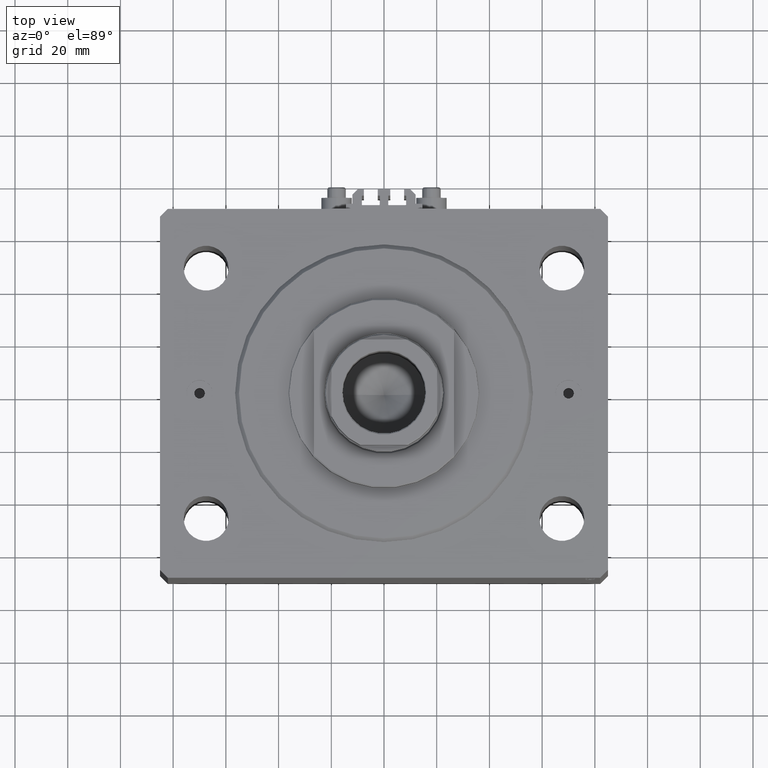
[diagram: clean part render]
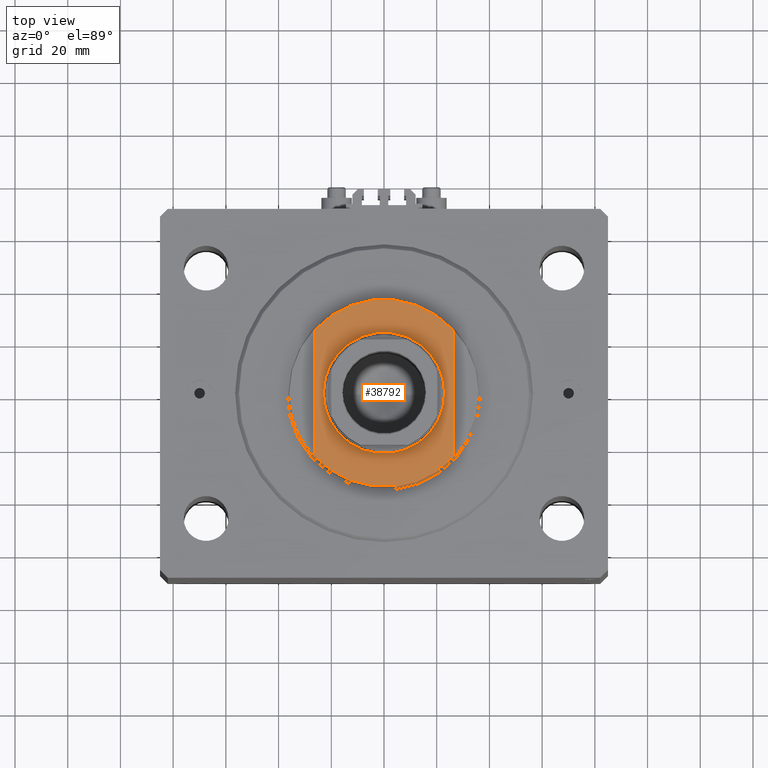
[diagram: same view with one face highlighted and labeled with its STEP entity id]
A machine part, top view. The second image highlights one B-rep face of the part: STEP entity #38792.
In plain terms, the highlighted planar face has unit normal (0, 0, 1).
Its self-contained STEP definition (entity closure, byte-faithful):
#463 = DIRECTION ( 'NONE',  ( -1.000000000000000000, 0.000000000000000000, 0.000000000000000000 ) ) ;
#1990 = DIRECTION ( 'NONE',  ( -1.000000000000000000, 0.000000000000000000, 0.000000000000000000 ) ) ;
#2572 = VERTEX_POINT ( 'NONE', #11446 ) ;
#3893 = VECTOR ( 'NONE', #31087, 1000.000000000000000 ) ;
#5106 = EDGE_CURVE ( 'NONE', #2572, #6985, #33433, .T. ) ;
#5212 = AXIS2_PLACEMENT_3D ( 'NONE', #28772, #14704, #43344 ) ;
#6864 = CARTESIAN_POINT ( 'NONE',  ( 26.50000000000000000, -23.62202362203536765, -8.000000000000000000 ) ) ;
#6985 = VERTEX_POINT ( 'NONE', #10676 ) ;
#9107 = FACE_BOUND ( 'NONE', #33024, .T. ) ;
#9850 = AXIS2_PLACEMENT_3D ( 'NONE', #22854, #30967, #27377 ) ;
#9957 = AXIS2_PLACEMENT_3D ( 'NONE', #30412, #34932, #1990 ) ;
#10140 = ORIENTED_EDGE ( 'NONE', *, *, #39075, .T. ) ;
#10676 = CARTESIAN_POINT ( 'NONE',  ( -23.00000000000001776, 0.000000000000000000, -8.000000000000000000 ) ) ;
#11446 = CARTESIAN_POINT ( 'NONE',  ( 23.00000000000001776, 2.816687638038914718E-15, -8.000000000000000000 ) ) ;
#14539 = CIRCLE ( 'NONE', #9957, 23.00000000000001776 ) ;
#14704 = DIRECTION ( 'NONE',  ( -0.000000000000000000, -0.000000000000000000, 1.000000000000000000 ) ) ;
#15362 = EDGE_CURVE ( 'NONE', #21250, #44253, #45902, .T. ) ;
#16416 = VERTEX_POINT ( 'NONE', #46262 ) ;
#17101 = EDGE_LOOP ( 'NONE', ( #28300, #10140, #32866, #32972 ) ) ;
#17647 = CARTESIAN_POINT ( 'NONE',  ( 26.50000000000000000, 23.62202362203536765, -8.000000000000000000 ) ) ;
#18782 = VERTEX_POINT ( 'NONE', #17647 ) ;
#19878 = CARTESIAN_POINT ( 'NONE',  ( -26.50000000000000000, -36.36963018783666257, -8.000000000000000000 ) ) ;
#21250 = VERTEX_POINT ( 'NONE', #6864 ) ;
#21805 = ORIENTED_EDGE ( 'NONE', *, *, #5106, .T. ) ;
#22854 = CARTESIAN_POINT ( 'NONE',  ( 0.000000000000000000, 0.000000000000000000, -8.000000000000000000 ) ) ;
#23688 = LINE ( 'NONE', #19878, #3893 ) ;
#24365 = VECTOR ( 'NONE', #26733, 1000.000000000000000 ) ;
#26733 = DIRECTION ( 'NONE',  ( 0.000000000000000000, -1.000000000000000000, -0.000000000000000000 ) ) ;
#27377 = DIRECTION ( 'NONE',  ( -1.000000000000000000, 0.000000000000000000, 0.000000000000000000 ) ) ;
#28300 = ORIENTED_EDGE ( 'NONE', *, *, #34511, .T. ) ;
#28772 = CARTESIAN_POINT ( 'NONE',  ( 0.000000000000000000, 0.000000000000000000, -8.000000000000000000 ) ) ;
#29614 = CARTESIAN_POINT ( 'NONE',  ( -26.50000000000000711, -23.62202362203537476, -8.000000000000000000 ) ) ;
#29833 = DIRECTION ( 'NONE',  ( 0.000000000000000000, 0.000000000000000000, -1.000000000000000000 ) ) ;
#30412 = CARTESIAN_POINT ( 'NONE',  ( 0.000000000000000000, 0.000000000000000000, -8.000000000000000000 ) ) ;
#30432 = CIRCLE ( 'NONE', #9850, 35.49999999999996447 ) ;
#30967 = DIRECTION ( 'NONE',  ( 0.000000000000000000, 0.000000000000000000, -1.000000000000000000 ) ) ;
#31087 = DIRECTION ( 'NONE',  ( -0.000000000000000000, -1.000000000000000000, -0.000000000000000000 ) ) ;
#32866 = ORIENTED_EDGE ( 'NONE', *, *, #15362, .T. ) ;
#32972 = ORIENTED_EDGE ( 'NONE', *, *, #41900, .F. ) ;
#33024 = EDGE_LOOP ( 'NONE', ( #43086, #21805 ) ) ;
#33433 = CIRCLE ( 'NONE', #5212, 23.00000000000001776 ) ;
#33946 = CARTESIAN_POINT ( 'NONE',  ( 0.000000000000000000, 0.000000000000000000, -8.000000000000000000 ) ) ;
#34287 = AXIS2_PLACEMENT_3D ( 'NONE', #33946, #45625, #38005 ) ;
#34427 = PLANE ( 'NONE',  #34287 ) ;
#34511 = EDGE_CURVE ( 'NONE', #16416, #18782, #30432, .T. ) ;
#34932 = DIRECTION ( 'NONE',  ( -0.000000000000000000, -0.000000000000000000, 1.000000000000000000 ) ) ;
#36715 = EDGE_CURVE ( 'NONE', #6985, #2572, #14539, .T. ) ;
#37480 = CARTESIAN_POINT ( 'NONE',  ( 26.50000000000000000, -36.36963018783666257, -8.000000000000000000 ) ) ;
#37713 = LINE ( 'NONE', #37480, #24365 ) ;
#38005 = DIRECTION ( 'NONE',  ( -1.000000000000000000, 0.000000000000000000, -0.000000000000000000 ) ) ;
#38255 = FACE_OUTER_BOUND ( 'NONE', #17101, .T. ) ;
#38792 = ADVANCED_FACE ( 'NONE', ( #9107, #38255 ), #34427, .T. ) ;
#39075 = EDGE_CURVE ( 'NONE', #18782, #21250, #37713, .T. ) ;
#39895 = CARTESIAN_POINT ( 'NONE',  ( 0.000000000000000000, 0.000000000000000000, -8.000000000000000000 ) ) ;
#41319 = AXIS2_PLACEMENT_3D ( 'NONE', #39895, #29833, #463 ) ;
#41900 = EDGE_CURVE ( 'NONE', #16416, #44253, #23688, .T. ) ;
#43086 = ORIENTED_EDGE ( 'NONE', *, *, #36715, .T. ) ;
#43344 = DIRECTION ( 'NONE',  ( -1.000000000000000000, 0.000000000000000000, 0.000000000000000000 ) ) ;
#44253 = VERTEX_POINT ( 'NONE', #29614 ) ;
#45625 = DIRECTION ( 'NONE',  ( 0.000000000000000000, 0.000000000000000000, -1.000000000000000000 ) ) ;
#45902 = CIRCLE ( 'NONE', #41319, 35.49999999999996447 ) ;
#46262 = CARTESIAN_POINT ( 'NONE',  ( -26.50000000000000000, 23.62202362203536765, -8.000000000000000000 ) ) ;